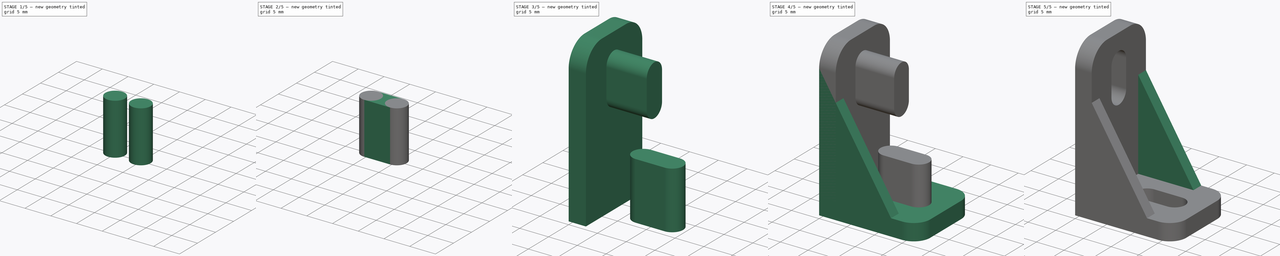
[diagram: build sequence overview — one tinted view per stage of 5, left to right]
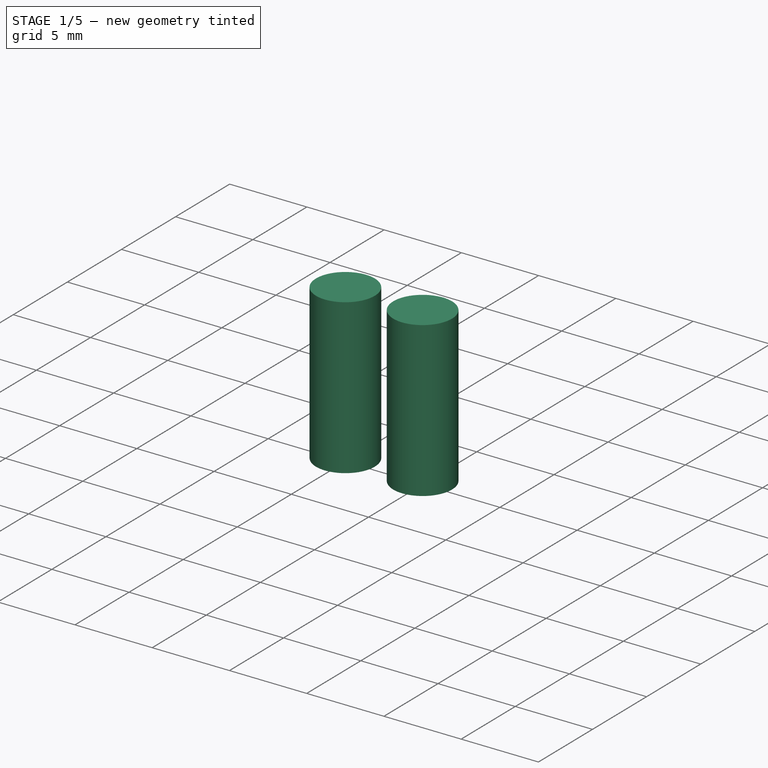
[diagram: stage 1 of 5 — iso view after this stage's code; geometry added in this stage tinted green]
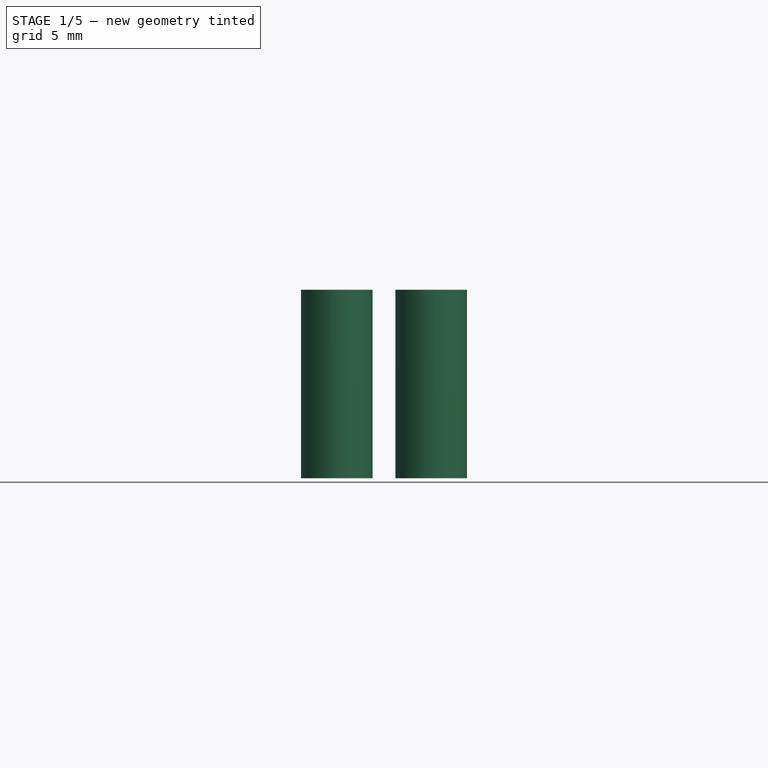
[diagram: stage 1 of 5 — front view after this stage's code; geometry added in this stage tinted green]
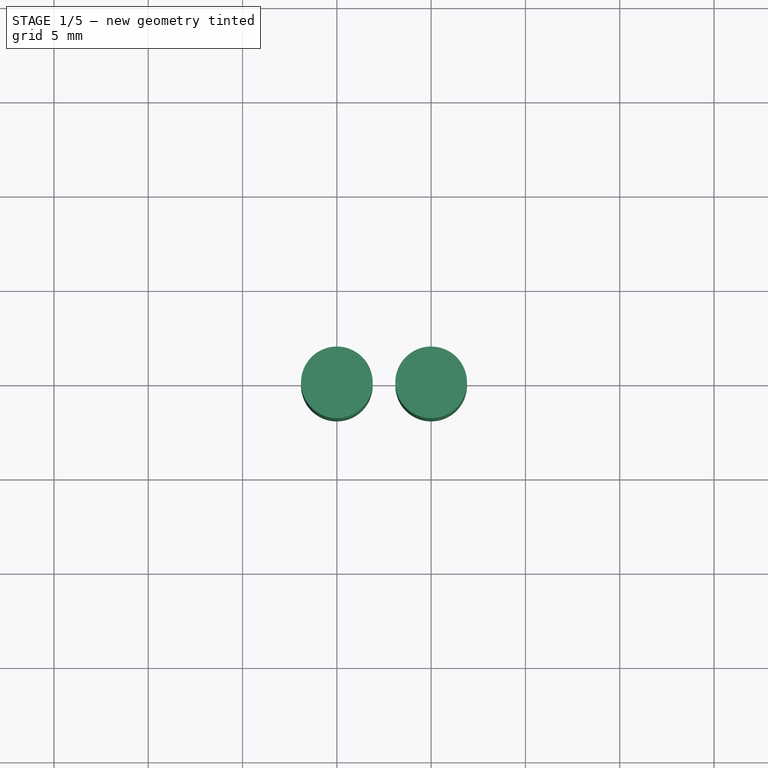
[diagram: stage 1 of 5 — top view after this stage's code; geometry added in this stage tinted green]
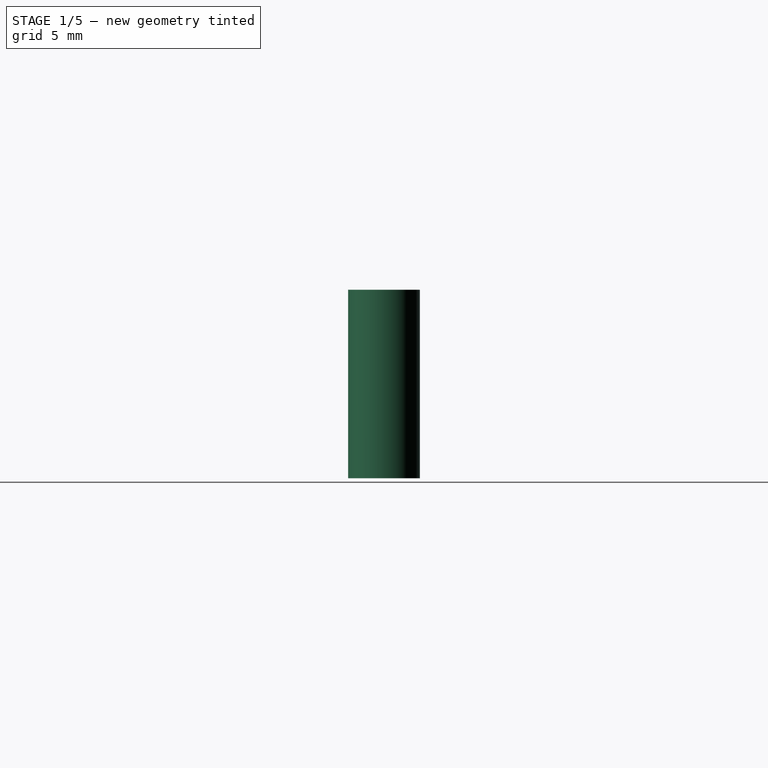
[diagram: stage 1 of 5 — right view after this stage's code; geometry added in this stage tinted green]
FCSTD DOCUMENT  (FreeCAD 0.19R23578 (Git))
Label: bracket
License: All rights reserved
LicenseURL: http://en.wikipedia.org/wiki/All_rights_reserved
objects: Part::Box×3, PartDesign::Body×3, Part::MultiFuse×3, Part::Fillet×2, PartDesign::FeatureBase×2, Spreadsheet::Sheet×1, Sketcher::SketchObject×1, PartDesign::Pad×1, Part::Mirroring×1, Part::Cylinder×1, Part::FeaturePython×1, Part::Cut×1, App::Part×1
note: 19 computed .brp shape members not serialized (recipe doc carries the construction recipe); baked Part::Feature solids carry a one-line shape summary decoded from their .brp

FEATURE [Part::Cylinder] Cylinder  label="screw hole"
  Angle = 360
  AttacherType = Attacher::AttachEngine3D
  Height = 10
  Radius = 1.9
  expr: Radius = Spreadsheet.screw_hole_r
FEATURE [Part::FeaturePython] Array  label="screw hole array"  # Draft array (typed FeaturePython)
  Angle = 360
  ArrayType = 0
  Axis = (0,0,1)
  Base = -> Cylinder
  Center = (0,0,0)
  Count = 2
  ExpandArray = false
  Fuse = false
  IntervalAxis = (0,0,0)
  IntervalX = (5,0,0)
  IntervalY = (0,100,0)
  IntervalZ = (0,0,100)
  NumberCircles = 3
  NumberPolar = 5
  NumberX = 2
  NumberY = 1
  NumberZ = 1
  PlacementList = 2 placements: [(0,0,0),(5,0,0)]
  RadialDistance = 50
  ScaleList = (2) [(1,1,1),(1,1,1)]
  Symmetry = 1
  TangentialDistance = 25
  expr: .IntervalX.x = <<between hole cube>>.Length
FEATURE [Part::Box] Box002  label="between hole cube"
  AttacherType = Attacher::AttachEngine3D
  Height = 10
  Length = 5
  Placement = pos=(0,-1.9,0) rot=(0,0,1;0rad)
  Width = 3.8
  expr: .Placement.Base.y = -Width / 2
  expr: Width = <<screw hole>>.Radius * 2
  expr: Height = <<screw hole>>.Height
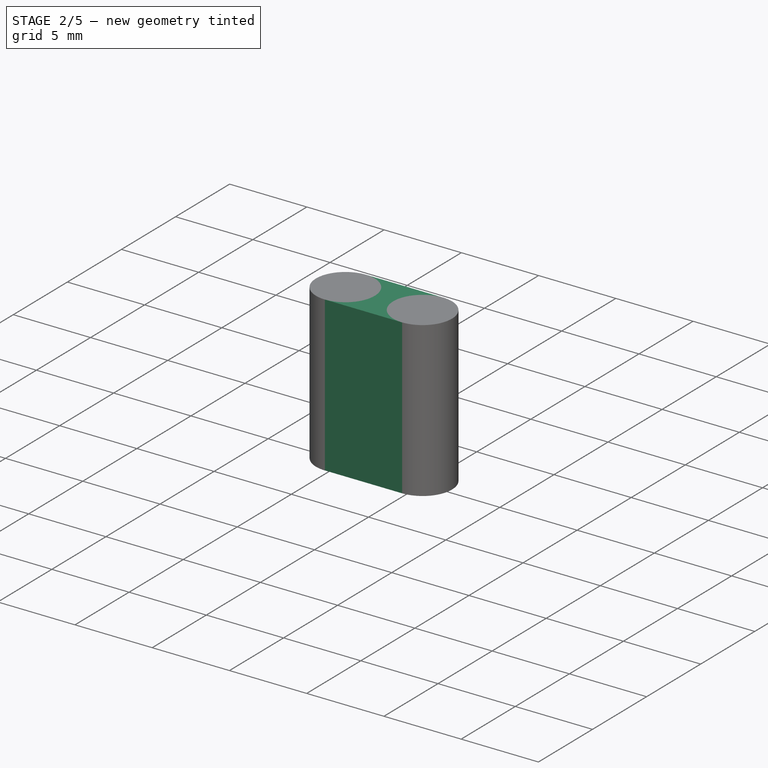
[diagram: stage 2 of 5 — iso view after this stage's code; geometry added in this stage tinted green]
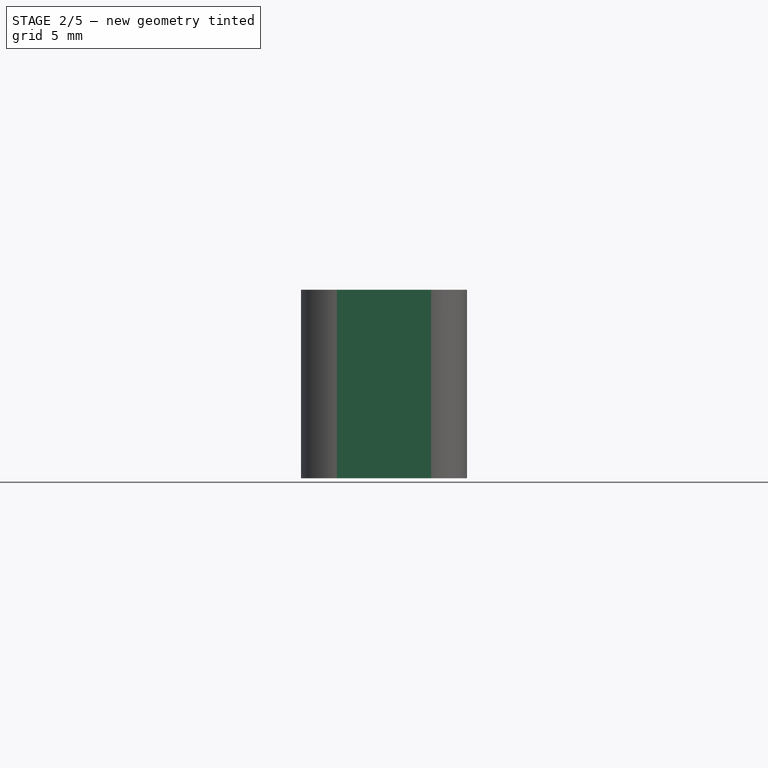
[diagram: stage 2 of 5 — front view after this stage's code; geometry added in this stage tinted green]
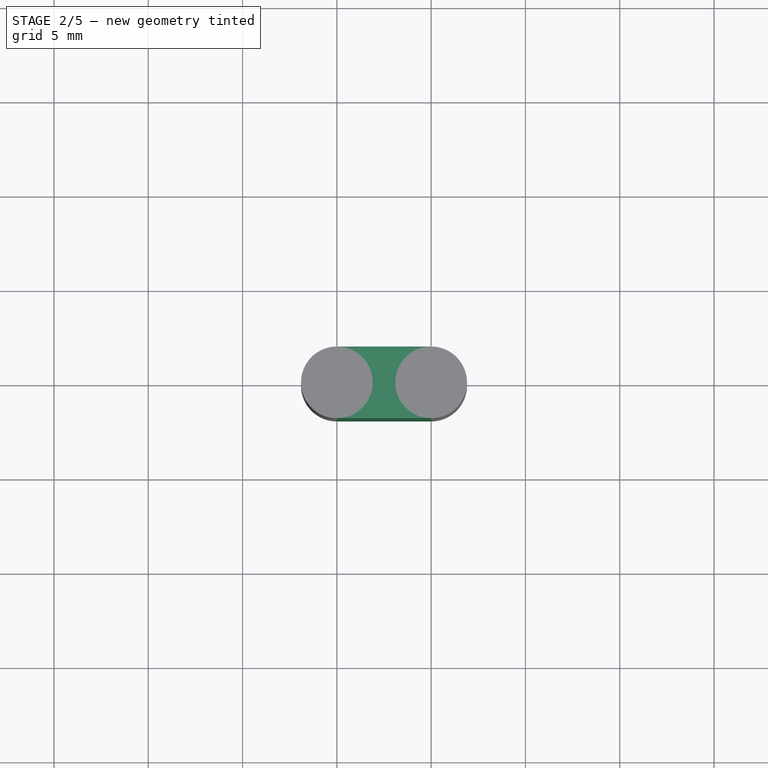
[diagram: stage 2 of 5 — top view after this stage's code; geometry added in this stage tinted green]
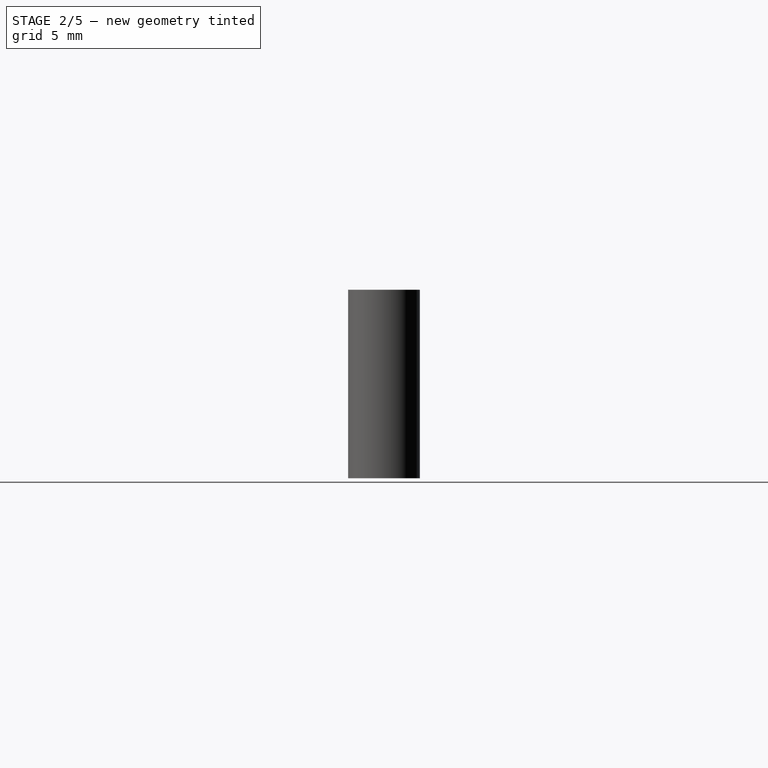
[diagram: stage 2 of 5 — right view after this stage's code; geometry added in this stage tinted green]
FEATURE [Part::MultiFuse] Fusion002  label="screw hole fusion"
  Shapes = -> [Array,Box002]
FEATURE [PartDesign::FeatureBase] Clone
  BaseFeature = -> Fusion002
FEATURE [PartDesign::Body] Body001  label="v screw hole fusion clone"
  Group = -> [Clone]
  Origin = -> Origin002
  Placement = pos=(8.1,7,0) rot=(0,0,1;0rad)
  Tip = -> Clone
  expr: .Placement.Base.x = <<p>>.bracket_length - Spreadsheet.screw_hole_r - <<between hole cube>>.Length
  expr: .Placement.Base.y = (<<p>>.bracket_width + 2 * <<p>>.side_wall) / 2
FEATURE [PartDesign::FeatureBase] Clone001
  BaseFeature = -> Fusion002
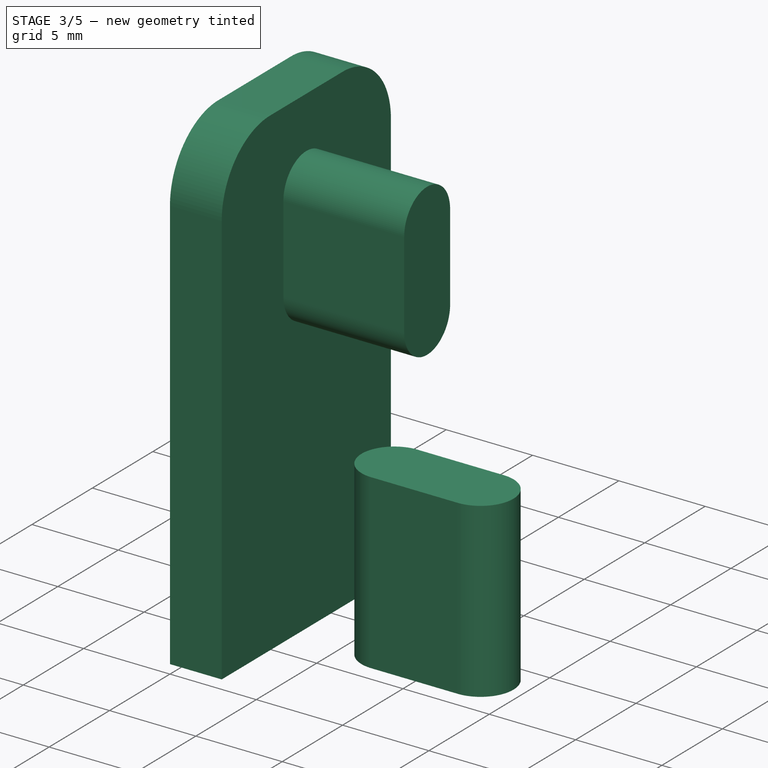
[diagram: stage 3 of 5 — iso view after this stage's code; geometry added in this stage tinted green]
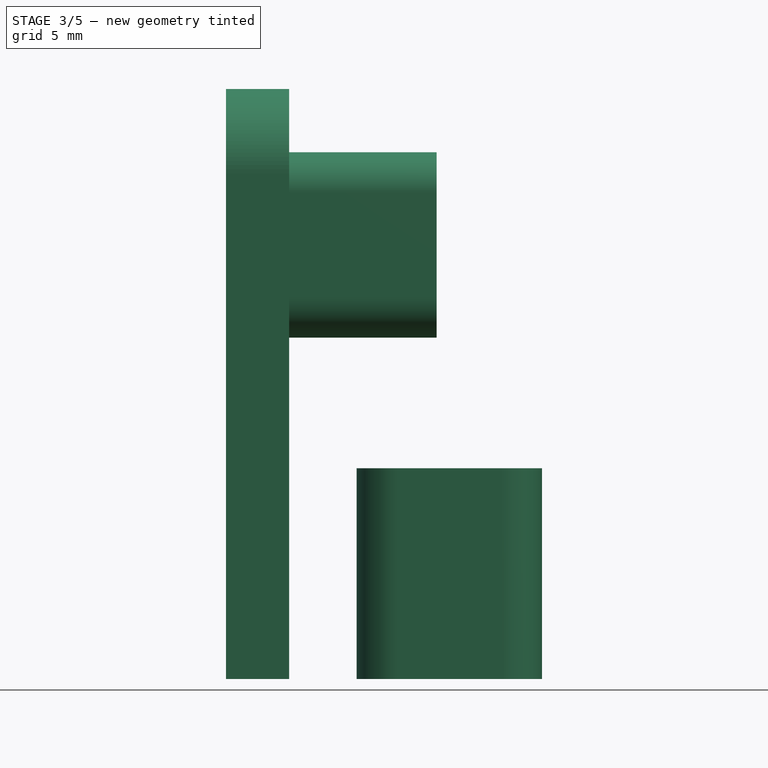
[diagram: stage 3 of 5 — front view after this stage's code; geometry added in this stage tinted green]
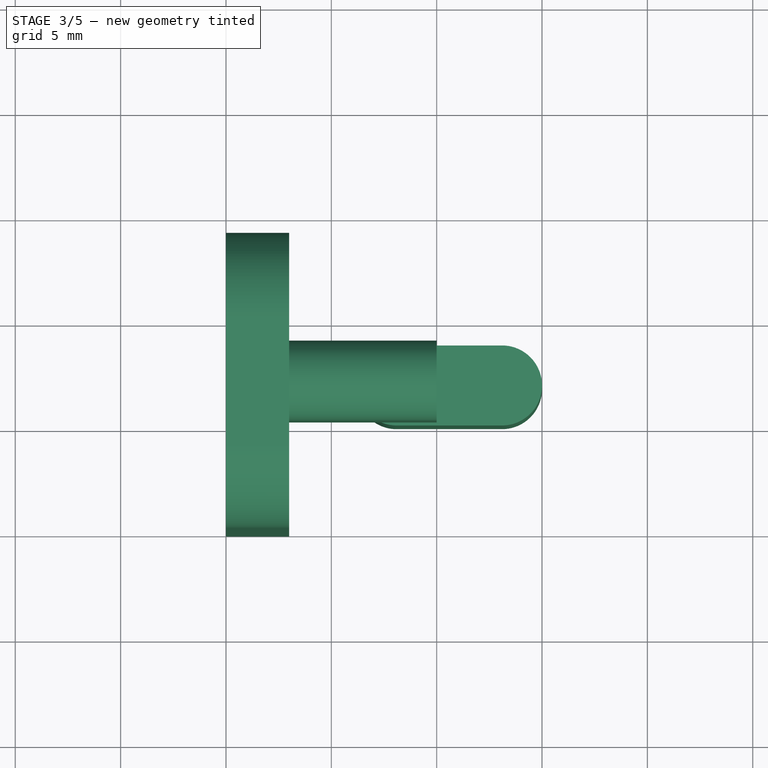
[diagram: stage 3 of 5 — top view after this stage's code; geometry added in this stage tinted green]
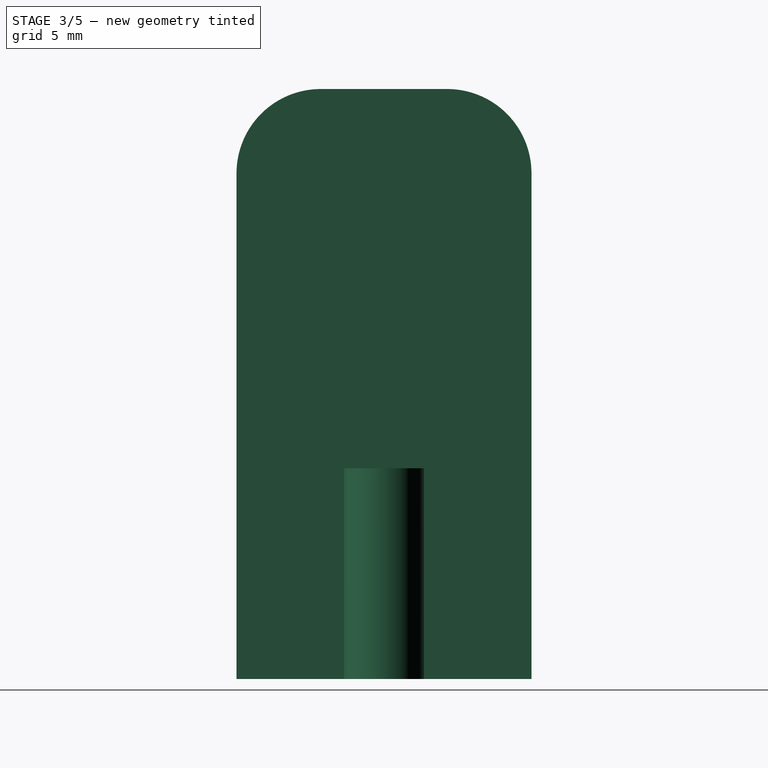
[diagram: stage 3 of 5 — right view after this stage's code; geometry added in this stage tinted green]
FEATURE [Part::Box] Box001  label="bottom cube"
  AttacherType = Attacher::AttachEngine3D
  Height = 28
  Length = 3
  Width = 14
  expr: Height = <<p>>.bracket_height + <<p>>.wall
  expr: Width = <<p>>.bracket_width + 2 * <<p>>.side_wall
  expr: Length = <<p>>.wall
FEATURE [Part::Fillet] Fillet001  label="bottom cube fillet"
  Base = -> Box001
  Edges = 2 edges r=4: [Edge10,Edge12]
FEATURE [PartDesign::Body] Body002  label="h screw hole fusion clone"
  Group = -> [Clone001]
  Origin = -> Origin003
  Placement = pos=(0,7,23.1) rot=(0,1,0;1.5708rad)
  Tip = -> Clone001
  expr: .Placement.Base.z = <<p>>.bracket_height - Spreadsheet.screw_hole_r
  expr: .Placement.Base.y = (<<p>>.bracket_width + 2 * <<p>>.side_wall) / 2
FEATURE [Part::MultiFuse] Fusion001  label="hole fusion"
  Shapes = -> [Body001,Body002]
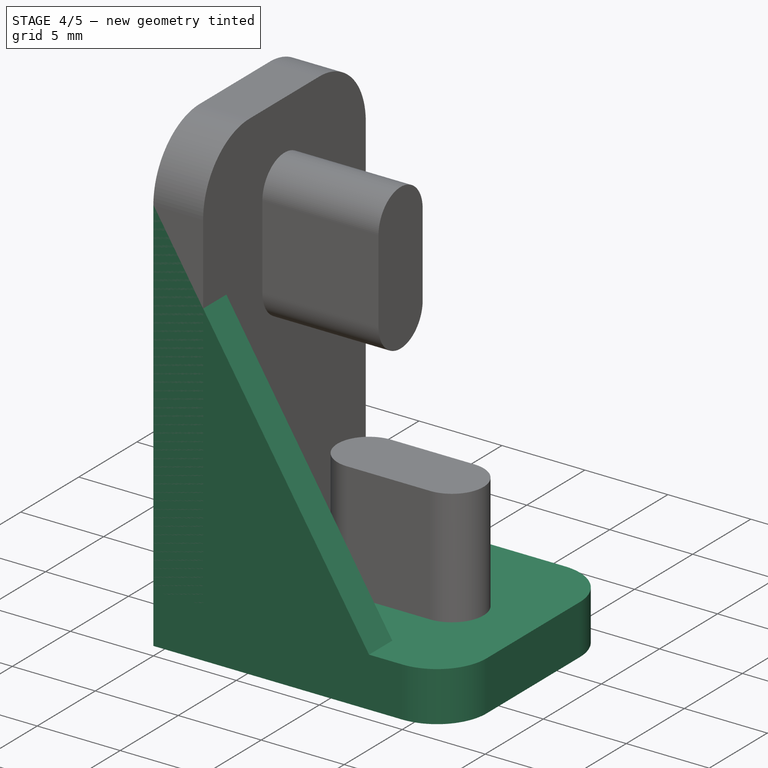
[diagram: stage 4 of 5 — iso view after this stage's code; geometry added in this stage tinted green]
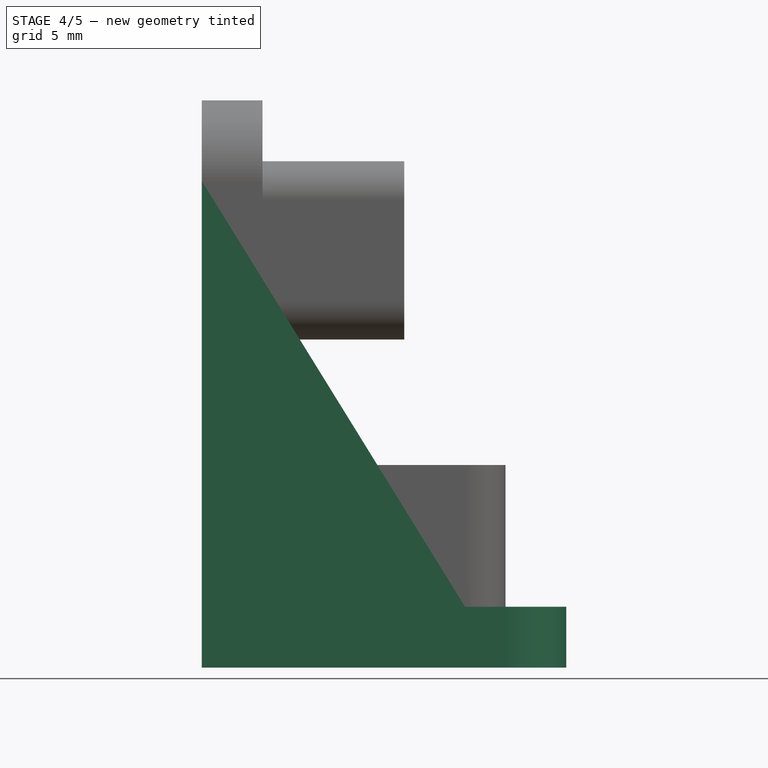
[diagram: stage 4 of 5 — front view after this stage's code; geometry added in this stage tinted green]
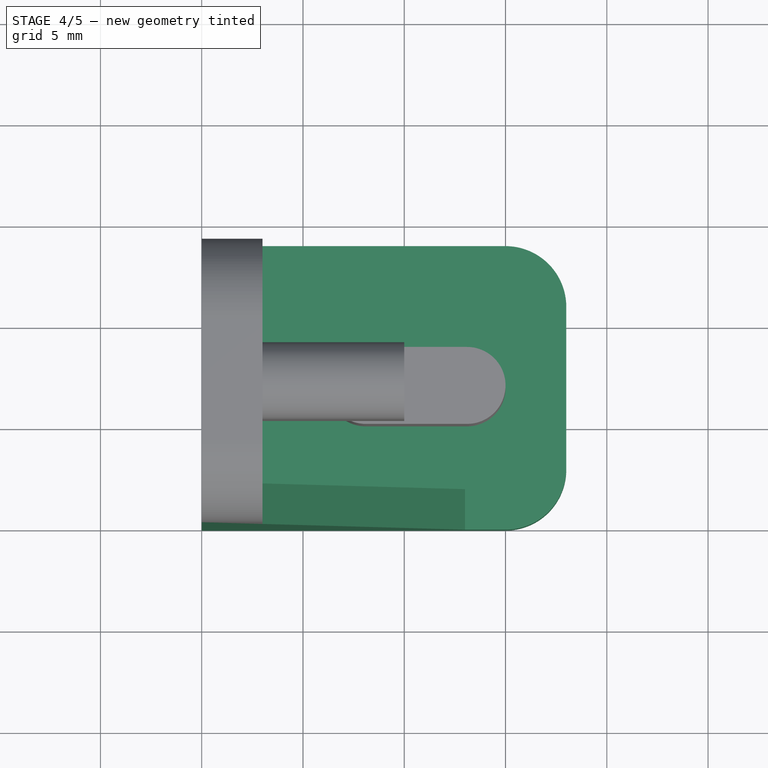
[diagram: stage 4 of 5 — top view after this stage's code; geometry added in this stage tinted green]
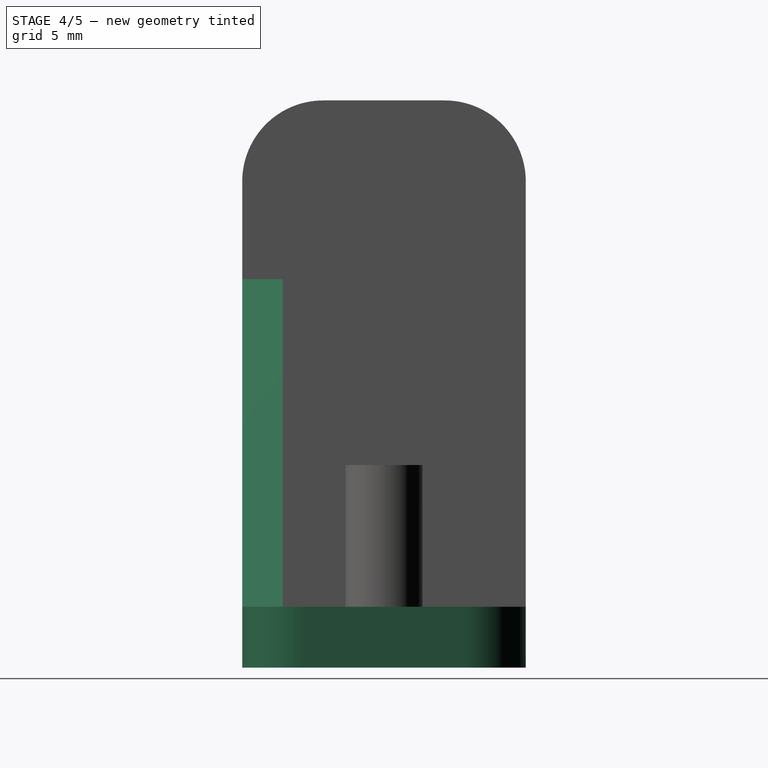
[diagram: stage 4 of 5 — right view after this stage's code; geometry added in this stage tinted green]
FEATURE [Spreadsheet::Sheet] Spreadsheet  label="p"
  cells = A1=bracket_length; B1(bracket_length)==15mm; A2=bracket_height; B2(bracket_height)==25mm; A3=bracket_width; B3(bracket_width)==10mm; A4=wall; B4(wall)==3mm; A5=side_wall; B5(side_wall)==2mm; A6=screw_hole_r; B6(screw_hole_r)==1.9mm
FEATURE [Part::Box] Box  label="top cube"
  AttacherType = Attacher::AttachEngine3D
  Height = 3
  Length = 18
  Width = 14
  expr: Length = <<p>>.bracket_length + <<p>>.wall
  expr: Width = <<p>>.bracket_width + 2 * <<p>>.side_wall
  expr: Height = <<p>>.wall
FEATURE [Sketcher::SketchObject] Sketch
  MapMode = 5
  Placement = pos=(0,0,0) rot=(1,0,0;1.5708rad)
  Support = -> [XZ_Plane001]
  sketch-geometry (3):
    g0: LineSegment StartX=0 StartY=0 StartZ=0 EndX=0 EndY=24.032 EndZ=0
    g1: LineSegment StartX=0 StartY=24.032 StartZ=0 EndX=14.8547 EndY=0 EndZ=0
    g2: LineSegment StartX=14.8547 StartY=0 StartZ=0 EndX=0 EndY=0 EndZ=0
  constraints (6):
    c: Coincident(g-1,g0)
    c: PointOnObject(g0,g-2)
    c: Coincident(g0,g1)
    c: PointOnObject(g1,g-1)
    c: Coincident(g1,g2)
    c: Coincident(g2,g0)
FEATURE [PartDesign::Pad] Pad
  Direction = (1,1,1)
  Length = 2
  Length2 = 100
  Placement = pos=(0,0,0) rot=(1,0,0;1.5708rad)
  Profile = -> Sketch
  Reversed = true
  Type = 0
  expr: Length = <<p>>.side_wall
FEATURE [Part::Fillet] Fillet  label="top cube fillet"
  Base = -> Box
  Edges = 2 edges r=3: [Edge5,Edge7]
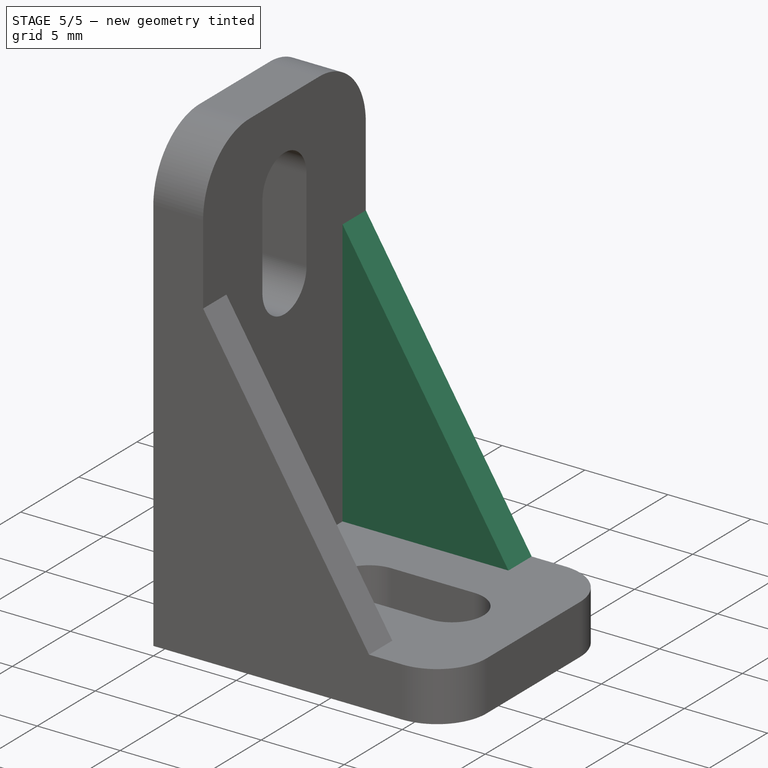
[diagram: stage 5 of 5 — iso view after this stage's code; geometry added in this stage tinted green]
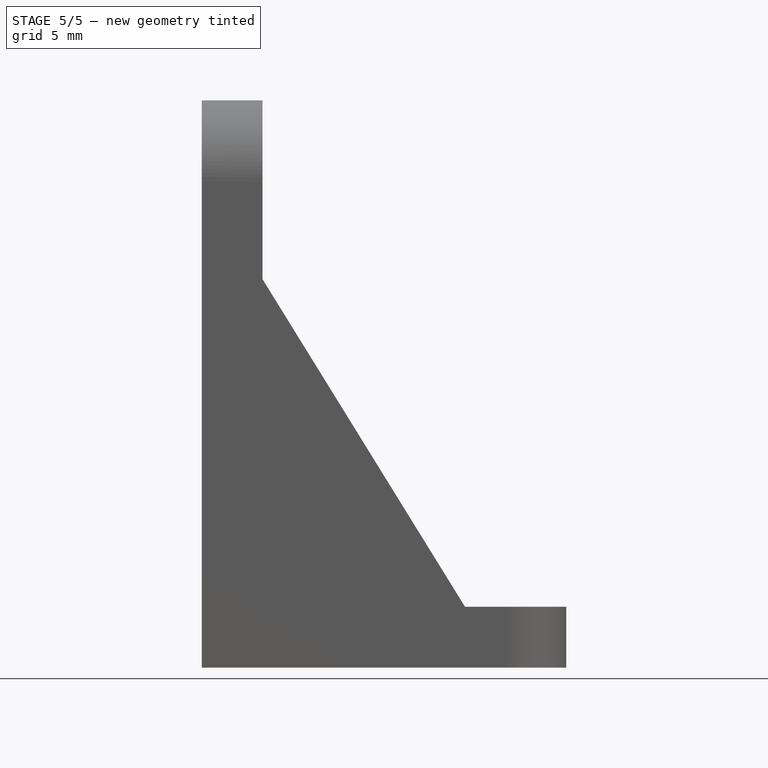
[diagram: stage 5 of 5 — front view after this stage's code; geometry added in this stage tinted green]
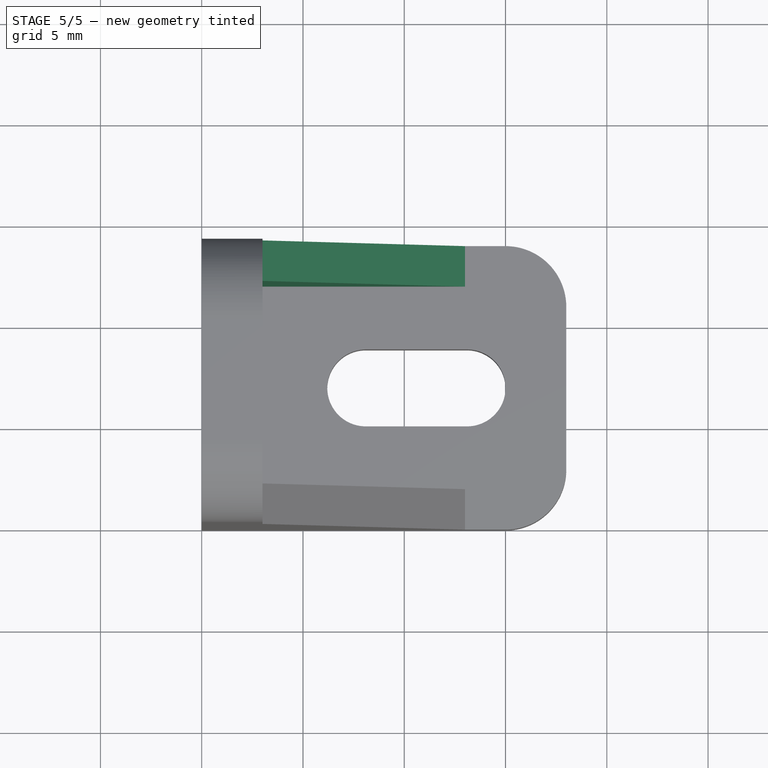
[diagram: stage 5 of 5 — top view after this stage's code; geometry added in this stage tinted green]
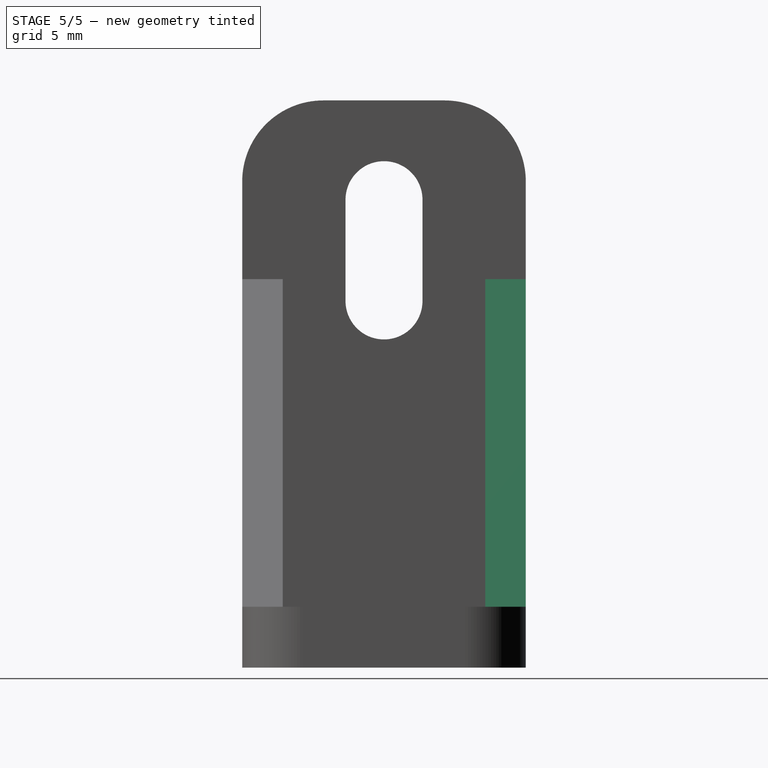
[diagram: stage 5 of 5 — right view after this stage's code; geometry added in this stage tinted green]
FEATURE [PartDesign::Body] Body  label="triangle body"
  Group = -> [Sketch,Pad]
  Origin = -> Origin001
  Tip = -> Pad
FEATURE [Part::Mirroring] Part__Mirroring  label="triangle body (Mirror #1)"
  Base = (0,7,0)
  Normal = (0,1,0)
  Source = -> Body
  expr: .Base.y = (<<p>>.bracket_width + 2 * <<p>>.side_wall) / 2
FEATURE [Part::MultiFuse] Fusion  label="bracket fusion"
  Shapes = -> [Fillet,Fillet001,Part__Mirroring,Body]
FEATURE [Part::Cut] Cut  label="bracket cut"
  Base = -> Fusion
  Tool = -> Fusion001
FEATURE [App::Part] Part  label="bracket part"
  Group = -> [Fillet,Fusion,Fusion001,Box,Box001,Body,Fillet001,Part__Mirroring,Cut]
  Origin = -> Origin
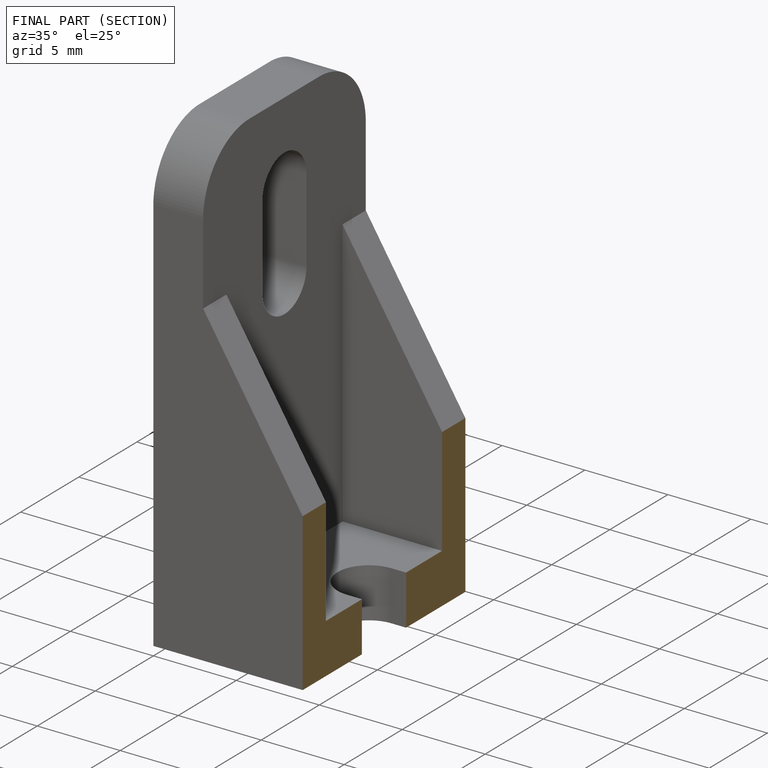
[diagram: finished part — half-section view (interior)]
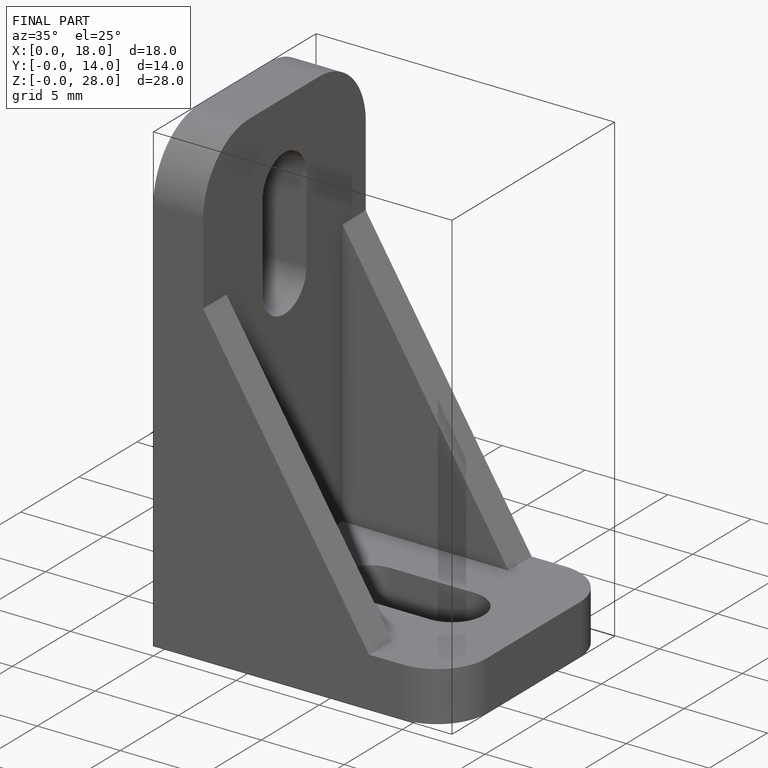
[diagram: finished part — iso view with bounding-box wireframe]
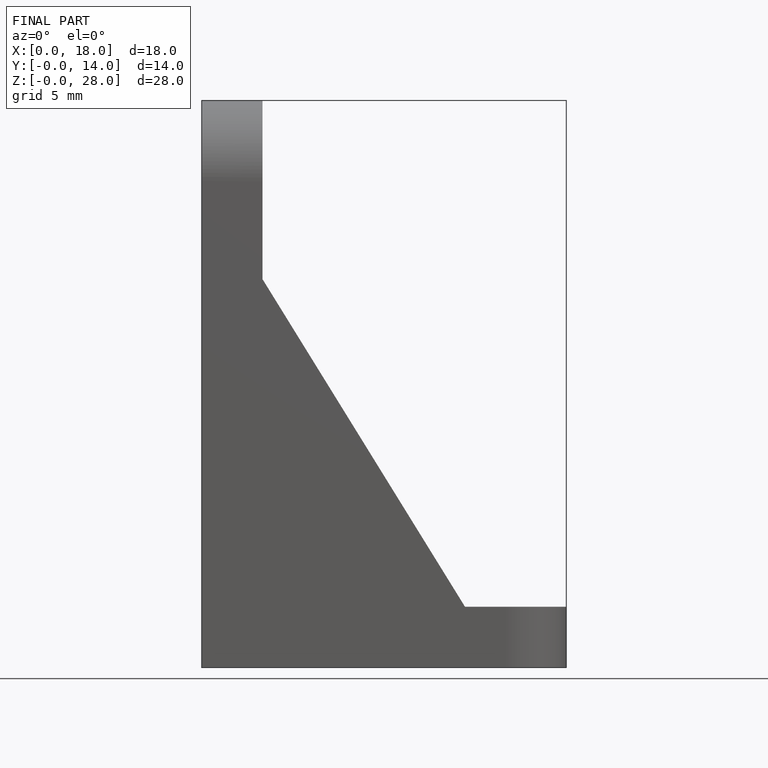
[diagram: finished part — front view with bounding-box wireframe]
